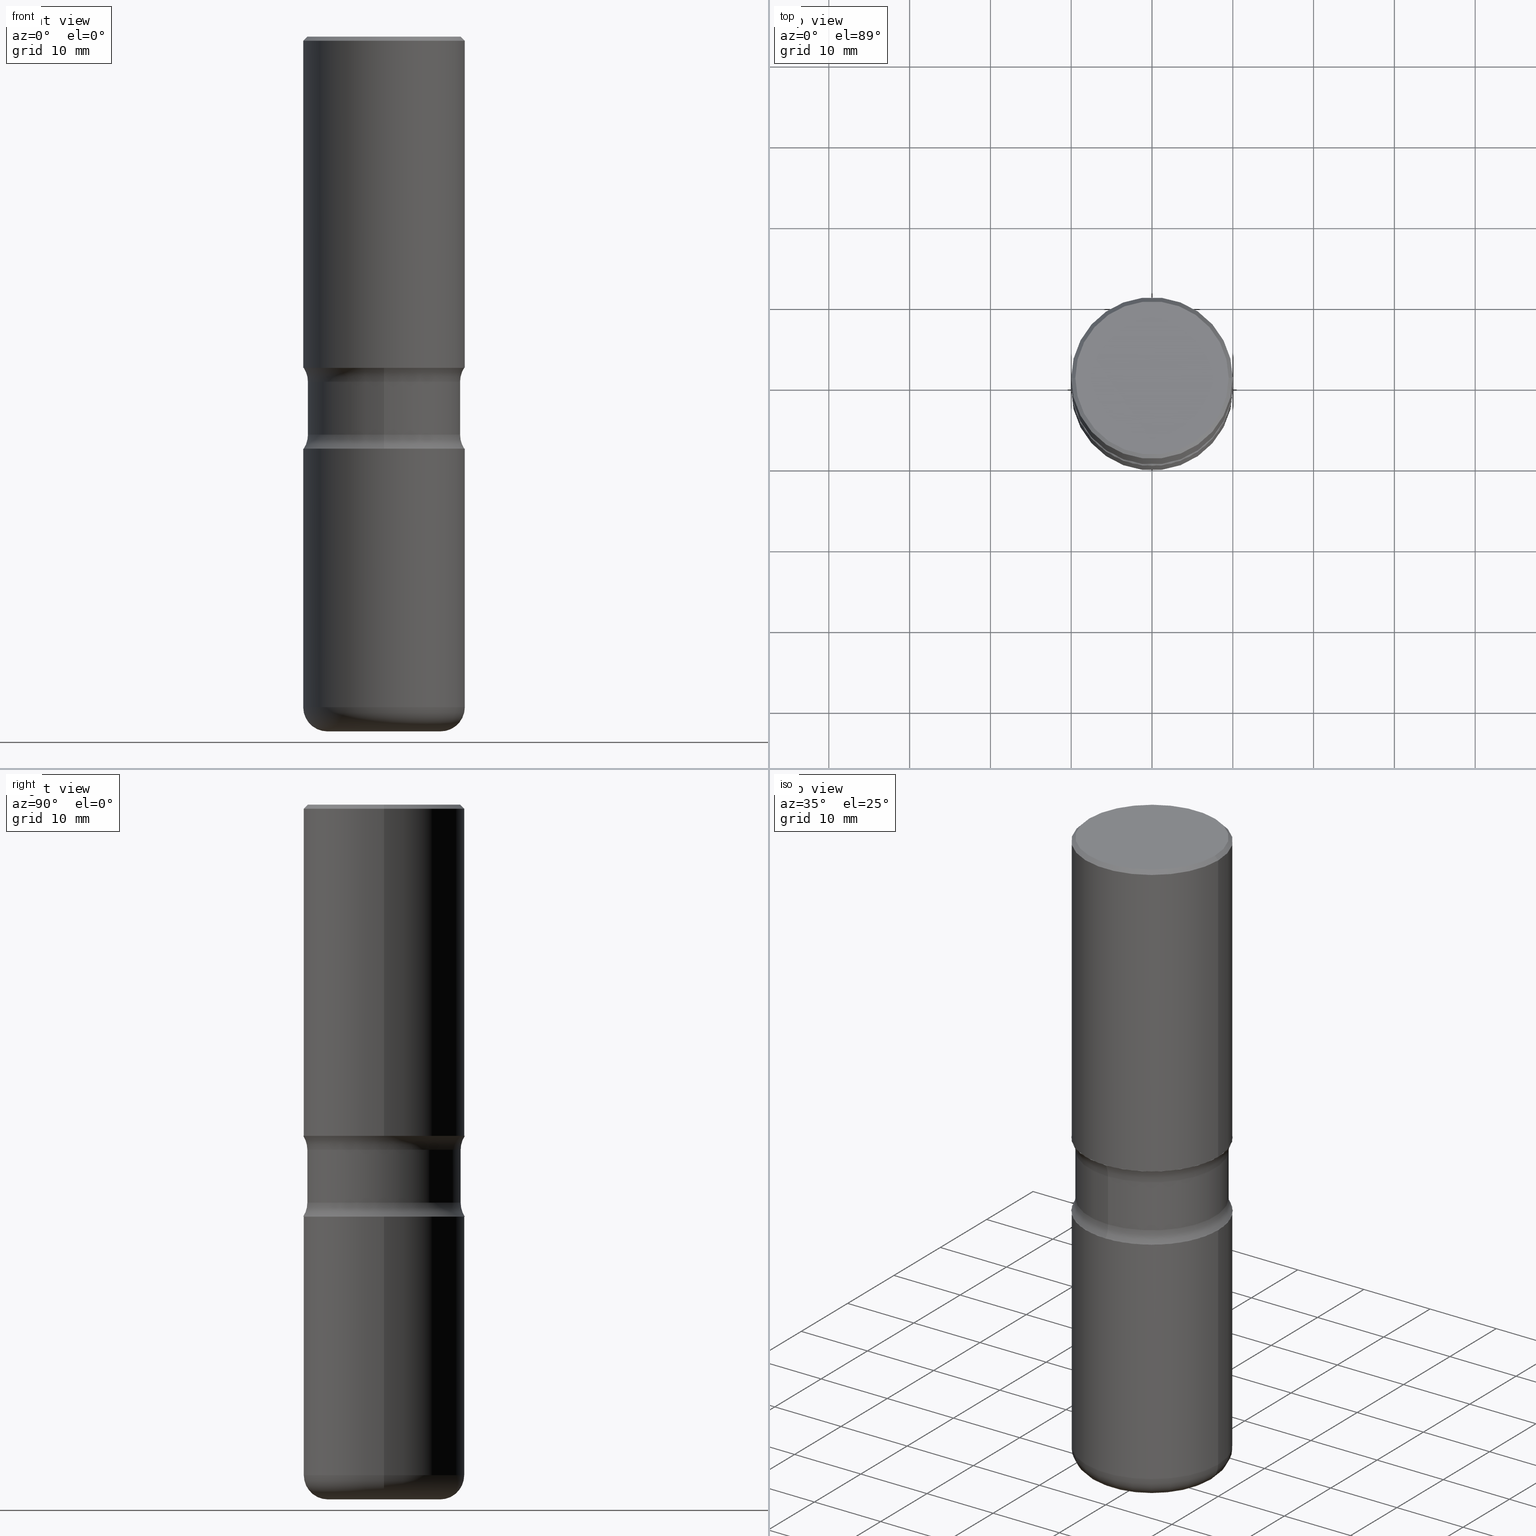
[diagram: canonical four-view strip — front | top / right | iso, engineering-drawing reading convention]
A machine part, canonical four-view strip (front | top / right | iso — engineering-drawing reading convention). The complete STEP part file that produces these views, byte-faithful:
ISO-10303-21;
HEADER;
FILE_DESCRIPTION (( 'STEP AP203' ),
    '1' );
FILE_NAME ('45006.STEP',
    '2024-03-02T04:34:52',
    ( '' ),
    ( '' ),
    'SwSTEP 2.0',
    'SolidWorks 2023',
    '' );
FILE_SCHEMA (( 'CONFIG_CONTROL_DESIGN' ));
ENDSEC;

DATA;
#1 = APPROVAL_STATUS ( 'not_yet_approved' ) ;
#2 = CARTESIAN_POINT ( 'NONE',  ( 4.752967058016124605E-29, -6.758611084008786993E-15, -1.939668069159900421 ) ) ;
#3 = AXIS2_PLACEMENT_3D ( 'NONE', #439, #234, #188 ) ;
#4 = LOCAL_TIME ( 23, 34, 52.00000000000000000, #377 ) ;
#5 = DATE_AND_TIME ( #139, #4 ) ;
#6 = CARTESIAN_POINT ( 'NONE',  ( 4.002527352294640857E-29, -5.556412791770095193E-15, -1.614100000000000090 ) ) ;
#7 = VERTEX_POINT ( 'NONE', #78 ) ;
#8 = EDGE_CURVE ( 'NONE', #489, #102, #161, .T. ) ;
#9 = COORDINATED_UNIVERSAL_TIME_OFFSET ( 5, 0, .BEHIND. ) ;
#10 = DIRECTION ( 'NONE',  ( -2.445468806185136877E-29, 3.491481338843145188E-15, 1.000000000000000000 ) ) ;
#11 = EDGE_LOOP ( 'NONE', ( #19, #438, #332, #276 ) ) ;
#12 = CARTESIAN_POINT ( 'NONE',  ( 3.131554243005659264E-46, -4.471029511141341874E-32, -1.280553747030123384E-17 ) ) ;
#13 = CONICAL_SURFACE ( 'NONE', #468, 0.3937000000000003830, 0.7853981633974467247 ) ;
#14 = AXIS2_PLACEMENT_3D ( 'NONE', #417, #413, #32 ) ;
#15 = ADVANCED_FACE ( 'NONE', ( #249 ), #58, .F. ) ;
#16 = FACE_OUTER_BOUND ( 'NONE', #11, .T. ) ;
#17 = ORIENTED_EDGE ( 'NONE', *, *, #253, .T. ) ;
#18 = DIRECTION ( 'NONE',  ( -2.445468806185136597E-29, 3.491481338843145583E-15, 1.000000000000000000 ) ) ;
#19 = ORIENTED_EDGE ( 'NONE', *, *, #85, .T. ) ;
#20 = DIRECTION ( 'NONE',  ( 6.982962677686265922E-15, 1.000000000000000000, -3.657092360996336056E-15 ) ) ;
#21 = ORIENTED_EDGE ( 'NONE', *, *, #223, .F. ) ;
#22 = CARTESIAN_POINT ( 'NONE',  ( -0.3737000000000003097, 2.644447966039791425E-15, -1.280553747031960567E-17 ) ) ;
#23 = VECTOR ( 'NONE', #10, 39.37007874015748143 ) ;
#24 = ORIENTED_EDGE ( 'NONE', *, *, #253, .F. ) ;
#25 = CIRCLE ( 'NONE', #187, 0.3937000000000007160 ) ;
#26 = EDGE_CURVE ( 'NONE', #301, #404, #297, .T. ) ;
#27 = FACE_OUTER_BOUND ( 'NONE', #452, .T. ) ;
#28 = ORIENTED_EDGE ( 'NONE', *, *, #401, .F. ) ;
#29 = CARTESIAN_POINT ( 'NONE',  ( 0.3937000000000006605, -2.749192406205087950E-15, 1.919750796630863254E-29 ) ) ;
#30 = DIRECTION ( 'NONE',  ( 2.305016298612844398E-29, -3.692617323746948219E-15, -1.000000000000000000 ) ) ;
#31 = EDGE_CURVE ( 'NONE', #160, #373, #284, .T. ) ;
#32 = DIRECTION ( 'NONE',  ( 1.000000000000000000, -6.982962677686266711E-15, 4.876212485538971195E-29 ) ) ;
#33 = AXIS2_PLACEMENT_3D ( 'NONE', #430, #350, #263 ) ;
#34 = AXIS2_PLACEMENT_3D ( 'NONE', #539, #487, #156 ) ;
#35 = LINE ( 'NONE', #111, #80 ) ;
#36 = DIRECTION ( 'NONE',  ( 2.445468806185136597E-29, -3.491481338843145583E-15, -1.000000000000000000 ) ) ;
#37 = CYLINDRICAL_SURFACE ( 'NONE', #344, 0.3735000000000001097 ) ;
#38 = CARTESIAN_POINT ( 'NONE',  ( 8.279868283981636714E-29, -1.182145751705512373E-14, -3.385800000000000143 ) ) ;
#39 = DIRECTION ( 'NONE',  ( 6.982962677686264344E-15, 1.000000000000000000, -3.657092360996334478E-15 ) ) ;
#40 = DIRECTION ( 'NONE',  ( -2.445468806185136877E-29, 3.491481338843145188E-15, 1.000000000000000000 ) ) ;
#41 = AXIS2_PLACEMENT_3D ( 'NONE', #140, #97, #267 ) ;
#42 = CIRCLE ( 'NONE', #196, 0.3735000000000000542 ) ;
#43 = CALENDAR_DATE ( 2024, 1, 3 ) ;
#44 = CARTESIAN_POINT ( 'NONE',  ( -0.3937000000000004940, 2.797406750687517942E-15, -1.936584745033358697E-29 ) ) ;
#45 = PERSON_AND_ORGANIZATION ( #55, #415 ) ;
#46 = CARTESIAN_POINT ( 'NONE',  ( 0.3937000000000006605, -8.384792435231810596E-15, -1.614100000000000090 ) ) ;
#47 = CARTESIAN_POINT ( 'NONE',  ( 2.609533152651359776E-15, 0.3737000000000003097, -1.311169345060835261E-15 ) ) ;
#48 = AXIS2_PLACEMENT_3D ( 'NONE', #54, #524, #427 ) ;
#49 = TOROIDAL_SURFACE ( 'NONE', #114, 0.4985000000000001652, 0.1250000000000000278 ) ;
#50 = DATE_AND_TIME ( #136, #538 ) ;
#51 = CARTESIAN_POINT ( 'NONE',  ( 0.3937000000000006605, -1.415830597714283597E-14, -3.267700000000000937 ) ) ;
#52 = CC_DESIGN_PERSON_AND_ORGANIZATION_ASSIGNMENT ( #254, #339, ( #437 ) ) ;
#53 = MECHANICAL_CONTEXT ( 'NONE', #75, 'mechanical' ) ;
#54 = CARTESIAN_POINT ( 'NONE',  ( 3.481006894826646538E-15, 0.4984999999999943365, -1.682231930840101475 ) ) ;
#55 = PERSON ( 'UNSPECIFIED', 'UNSPECIFIED', 'UNSPECIFIED', ('UNSPECIFIED'), ('UNSPECIFIED'), ('UNSPECIFIED') ) ;
#56 = CARTESIAN_POINT ( 'NONE',  ( 0.000000000000000000, 0.000000000000000000, 0.000000000000000000 ) ) ;
#57 = ORIENTED_EDGE ( 'NONE', *, *, #328, .F. ) ;
#58 = TOROIDAL_SURFACE ( 'NONE', #257, 0.4985000000000002207, 0.1250000000000000000 ) ;
#59 = ADVANCED_FACE ( 'NONE', ( #252 ), #13, .T. ) ;
#60 = VECTOR ( 'NONE', #30, 39.37007874015748143 ) ;
#61 = CYLINDRICAL_SURFACE ( 'NONE', #228, 0.3937000000000004940 ) ;
#62 = ORIENTED_EDGE ( 'NONE', *, *, #309, .F. ) ;
#63 = DIRECTION ( 'NONE',  ( 0.7071067811865464625, -7.319954787623252890E-15, -0.7071067811865486830 ) ) ;
#64 = ORIENTED_EDGE ( 'NONE', *, *, #106, .T. ) ;
#65 = DIRECTION ( 'NONE',  ( 7.105427357601001859E-15, 1.000000000000000000, -3.491481338843145583E-15 ) ) ;
#66 = ORIENTED_EDGE ( 'NONE', *, *, #144, .F. ) ;
#67 = ADVANCED_FACE ( 'NONE', ( #251 ), #292, .T. ) ;
#68 = LINE ( 'NONE', #393, #354 ) ;
#69 = TOROIDAL_SURFACE ( 'NONE', #405, 0.4985000000000002207, 0.1250000000000000000 ) ;
#70 = VERTEX_POINT ( 'NONE', #457 ) ;
#71 = CC_DESIGN_SECURITY_CLASSIFICATION ( #247, ( #437 ) ) ;
#72 = LINE ( 'NONE', #29, #376 ) ;
#73 = APPLICATION_CONTEXT ( 'configuration controlled 3d designs of mechanical parts and assemblies' ) ;
#74 = DIRECTION ( 'NONE',  ( 2.305016298612844398E-29, -3.692617323746948219E-15, -1.000000000000000000 ) ) ;
#75 = APPLICATION_CONTEXT ( 'configuration controlled 3d designs of mechanical parts and assemblies' ) ;
#76 = APPROVAL ( #1, 'UNSPECIFIED' ) ;
#77 = DIRECTION ( 'NONE',  ( 2.305016298612844398E-29, -3.692617323746948219E-15, -1.000000000000000000 ) ) ;
#78 = CARTESIAN_POINT ( 'NONE',  ( -0.3937000000000006605, -8.611706820250229288E-15, -3.267700000000000937 ) ) ;
#79 = AXIS2_PLACEMENT_3D ( 'NONE', #130, #87, #305 ) ;
#80 = VECTOR ( 'NONE', #412, 39.37007874015748143 ) ;
#81 = FACE_OUTER_BOUND ( 'NONE', #390, .T. ) ;
#82 = DIRECTION ( 'NONE',  ( 1.000000000000000000, -6.982962677686266711E-15, 4.876176775795935793E-29 ) ) ;
#83 =( NAMED_UNIT ( * ) PLANE_ANGLE_UNIT ( ) SI_UNIT ( $, .RADIAN. ) );
#84 = EDGE_LOOP ( 'NONE', ( #322, #154, #244, #459 ) ) ;
#85 = EDGE_CURVE ( 'NONE', #311, #160, #123, .T. ) ;
#86 = APPROVAL_DATE_TIME ( #173, #76 ) ;
#87 = DIRECTION ( 'NONE',  ( 2.305016298612844398E-29, -3.692617323746948219E-15, -1.000000000000000000 ) ) ;
#88 = EDGE_CURVE ( 'NONE', #108, #226, #411, .T. ) ;
#89 = AXIS2_PLACEMENT_3D ( 'NONE', #109, #279, #408 ) ;
#90 = SECURITY_CLASSIFICATION_LEVEL ( 'unclassified' ) ;
#91 = DIRECTION ( 'NONE',  ( 1.000000000000000000, -6.982962677686266711E-15, 4.876176775795936353E-29 ) ) ;
#92 = APPLICATION_PROTOCOL_DEFINITION ( 'international standard', 'config_control_design', 1994, #73 ) ;
#93 = ADVANCED_FACE ( 'NONE', ( #337 ), #212, .F. ) ;
#94 = DIRECTION ( 'NONE',  ( 1.000000000000000000, -6.982962677686266711E-15, 0.000000000000000000 ) ) ;
#95 = DIRECTION ( 'NONE',  ( 2.305016298612844398E-29, -3.692617323746948219E-15, -1.000000000000000000 ) ) ;
#96 =( GEOMETRIC_REPRESENTATION_CONTEXT ( 3 ) GLOBAL_UNCERTAINTY_ASSIGNED_CONTEXT ( ( #120 ) ) GLOBAL_UNIT_ASSIGNED_CONTEXT ( ( #125, #83, #520 ) ) REPRESENTATION_CONTEXT ( 'NONE', 'WORKASPACE' ) );
#97 = DIRECTION ( 'NONE',  ( -2.445468806185136597E-29, 3.491481338843145583E-15, 1.000000000000000000 ) ) ;
#98 = ORIENTED_EDGE ( 'NONE', *, *, #345, .T. ) ;
#99 = EDGE_CURVE ( 'NONE', #206, #70, #72, .T. ) ;
#100 = CARTESIAN_POINT ( 'NONE',  ( 4.159572563337033897E-29, -5.807997939890574032E-15, -1.682231930840099476 ) ) ;
#101 = CARTESIAN_POINT ( 'NONE',  ( 0.000000000000000000, 0.000000000000000000, 0.000000000000000000 ) ) ;
#102 = VERTEX_POINT ( 'NONE', #521 ) ;
#103 = AXIS2_PLACEMENT_3D ( 'NONE', #6, #182, #347 ) ;
#104 = CARTESIAN_POINT ( 'NONE',  ( 3.947231200063429727E-29, -5.635600029026721857E-15, -1.614100000000000090 ) ) ;
#105 = VERTEX_POINT ( 'NONE', #224 ) ;
#106 = EDGE_CURVE ( 'NONE', #404, #301, #272, .T. ) ;
#107 = DIRECTION ( 'NONE',  ( 6.982962677686265922E-15, 1.000000000000000000, -3.469453890861389657E-15 ) ) ;
#108 = VERTEX_POINT ( 'NONE', #46 ) ;
#109 = CARTESIAN_POINT ( 'NONE',  ( 4.910012269058516525E-29, -7.010196232129267410E-15, -2.007800000000000029 ) ) ;
#110 = ORIENTED_EDGE ( 'NONE', *, *, #135, .T. ) ;
#111 = CARTESIAN_POINT ( 'NONE',  ( -0.3937000000000003830, 2.679362779428222679E-15, -0.02000000000000013572 ) ) ;
#112 = CIRCLE ( 'NONE', #462, 0.2756000000000001227 ) ;
#113 = ORIENTED_EDGE ( 'NONE', *, *, #274, .T. ) ;
#114 = AXIS2_PLACEMENT_3D ( 'NONE', #166, #74, #499 ) ;
#115 = DIMENSIONAL_EXPONENTS ( 1.000000000000000000, 0.000000000000000000, 0.000000000000000000, 0.000000000000000000, 0.000000000000000000, 0.000000000000000000, 0.000000000000000000 ) ;
#116 = DIRECTION ( 'NONE',  ( 2.305016298612844398E-29, -3.692617323746948219E-15, -1.000000000000000000 ) ) ;
#117 = CARTESIAN_POINT ( 'NONE',  ( 4.743397757483890668E-29, -6.772314867021708215E-15, -1.939668069159900421 ) ) ;
#118 = DIRECTION ( 'NONE',  ( 6.982962677686265922E-15, 1.000000000000000000, -4.388510833195602005E-15 ) ) ;
#119 = VERTEX_POINT ( 'NONE', #174 ) ;
#120 = UNCERTAINTY_MEASURE_WITH_UNIT (LENGTH_MEASURE( 1.000000000000000082E-05 ), #125, 'distance_accuracy_value', 'NONE');
#121 = CARTESIAN_POINT ( 'NONE',  ( 7.991058417971171713E-29, -1.140911357093774644E-14, -3.267700000000000049 ) ) ;
#122 = ORIENTED_EDGE ( 'NONE', *, *, #229, .T. ) ;
#123 = CIRCLE ( 'NONE', #478, 0.3735000000000000542 ) ;
#124 = CIRCLE ( 'NONE', #299, 0.3735000000000002207 ) ;
#125 =( CONVERSION_BASED_UNIT ( 'INCH', #209 ) LENGTH_UNIT ( ) NAMED_UNIT ( #115 ) );
#126 = DIRECTION ( 'NONE',  ( -1.000000000000000000, 6.982962677686266711E-15, 0.000000000000000000 ) ) ;
#127 = CALENDAR_DATE ( 2024, 1, 3 ) ;
#128 = DIRECTION ( 'NONE',  ( 1.000000000000000000, -6.982962677686265922E-15, 4.876176775795935793E-29 ) ) ;
#129 = DATE_TIME_ROLE ( 'creation_date' ) ;
#130 = CARTESIAN_POINT ( 'NONE',  ( 4.161536693090229815E-29, -5.805185194292673437E-15, -1.682231930840099476 ) ) ;
#131 = AXIS2_PLACEMENT_3D ( 'NONE', #310, #18, #190 ) ;
#132 = ADVANCED_FACE ( 'NONE', ( #137 ), #394, .F. ) ;
#133 = DIRECTION ( 'NONE',  ( 1.000000000000000000, 0.000000000000000000, 0.000000000000000000 ) ) ;
#134 = CYLINDRICAL_SURFACE ( 'NONE', #245, 0.3937000000000006605 ) ;
#135 = EDGE_CURVE ( 'NONE', #160, #533, #342, .T. ) ;
#136 = CALENDAR_DATE ( 2024, 1, 3 ) ;
#137 = FACE_OUTER_BOUND ( 'NONE', #207, .T. ) ;
#138 = ORIENTED_EDGE ( 'NONE', *, *, #106, .F. ) ;
#139 = CALENDAR_DATE ( 2024, 1, 3 ) ;
#140 = CARTESIAN_POINT ( 'NONE',  ( 4.890937612370306439E-31, -6.982962677686338448E-17, -0.02000000000000013572 ) ) ;
#141 = VECTOR ( 'NONE', #434, 39.37007874015748143 ) ;
#142 = CIRCLE ( 'NONE', #89, 0.3937000000000007160 ) ;
#143 = DIRECTION ( 'NONE',  ( -2.305016298612844117E-29, 3.692617323746948219E-15, 1.000000000000000000 ) ) ;
#144 = EDGE_CURVE ( 'NONE', #119, #226, #536, .T. ) ;
#145 = VERTEX_POINT ( 'NONE', #479 ) ;
#146 = DIRECTION ( 'NONE',  ( 6.982962677686265922E-15, 1.000000000000000000, -3.692617323746948219E-15 ) ) ;
#147 = ORIENTED_EDGE ( 'NONE', *, *, #144, .T. ) ;
#148 = DIRECTION ( 'NONE',  ( 1.000000000000000000, -6.860497997771530774E-15, 4.838335674223085535E-29 ) ) ;
#149 = ORIENTED_EDGE ( 'NONE', *, *, #248, .T. ) ;
#150 = ADVANCED_FACE ( 'NONE', ( #259 ), #177, .F. ) ;
#151 = AXIS2_PLACEMENT_3D ( 'NONE', #491, #483, #397 ) ;
#152 = CIRCLE ( 'NONE', #446, 0.3937000000000006605 ) ;
#153 = DIRECTION ( 'NONE',  ( 1.000000000000000000, -6.982962677686266711E-15, 4.876176775795936353E-29 ) ) ;
#154 = ORIENTED_EDGE ( 'NONE', *, *, #215, .T. ) ;
#155 = ADVANCED_FACE ( 'NONE', ( #526 ), #185, .F. ) ;
#156 = DIRECTION ( 'NONE',  ( 1.000000000000000000, -6.982962677686266711E-15, 0.000000000000000000 ) ) ;
#157 = EDGE_LOOP ( 'NONE', ( #28, #110, #149, #21 ) ) ;
#158 = CARTESIAN_POINT ( 'NONE',  ( 8.086324728547017721E-29, -1.209862290425256339E-14, -3.385800000000000143 ) ) ;
#159 = EDGE_CURVE ( 'NONE', #105, #119, #467, .T. ) ;
#160 = VERTEX_POINT ( 'NONE', #351 ) ;
#161 = CIRCLE ( 'NONE', #195, 0.2756000000000001227 ) ;
#162 = DIRECTION ( 'NONE',  ( 6.982962677686265922E-15, 1.000000000000000000, -4.388510833195602005E-15 ) ) ;
#163 = CIRCLE ( 'NONE', #205, 0.1180999999999999273 ) ;
#164 = CARTESIAN_POINT ( 'NONE',  ( 0.3937000000000004940, -2.749192406205086766E-15, 1.919750796630862414E-29 ) ) ;
#165 = CC_DESIGN_PERSON_AND_ORGANIZATION_ASSIGNMENT ( #260, #262, ( #431 ) ) ;
#166 = CARTESIAN_POINT ( 'NONE',  ( 4.161536693090229815E-29, -5.805185194292673437E-15, -1.682231930840099476 ) ) ;
#167 = EDGE_LOOP ( 'NONE', ( #473, #168, #356, #231 ) ) ;
#168 = ORIENTED_EDGE ( 'NONE', *, *, #401, .T. ) ;
#169 = CARTESIAN_POINT ( 'NONE',  ( 2.608136560115902248E-15, 0.3734999999999880638, -3.385800000000001919 ) ) ;
#170 = ORIENTED_EDGE ( 'NONE', *, *, #391, .T. ) ;
#171 = CC_DESIGN_APPROVAL ( #380, ( #247 ) ) ;
#172 = CARTESIAN_POINT ( 'NONE',  ( 4.159572563337033897E-29, -5.807997939890574032E-15, -1.682231930840099476 ) ) ;
#173 = DATE_AND_TIME ( #127, #369 ) ;
#174 = CARTESIAN_POINT ( 'NONE',  ( -0.3937000000000003830, 2.679362779428222679E-15, -0.02000000000000013572 ) ) ;
#175 = EDGE_CURVE ( 'NONE', #373, #364, #227, .T. ) ;
#176 = PERSON_AND_ORGANIZATION ( #55, #415 ) ;
#177 = PLANE ( 'NONE',  #506 ) ;
#178 = AXIS2_PLACEMENT_3D ( 'NONE', #304, #218, #94 ) ;
#179 = ADVANCED_FACE ( 'NONE', ( #471 ), #256, .T. ) ;
#180 = AXIS2_PLACEMENT_3D ( 'NONE', #542, #501, #374 ) ;
#181 = APPROVAL_ROLE ( '' ) ;
#182 = DIRECTION ( 'NONE',  ( 2.305016298612844398E-29, -3.692617323746948219E-15, -1.000000000000000000 ) ) ;
#183 = DATE_AND_TIME ( #43, #407 ) ;
#184 = LINE ( 'NONE', #381, #23 ) ;
#185 = PLANE ( 'NONE',  #353 ) ;
#186 = ORIENTED_EDGE ( 'NONE', *, *, #486, .T. ) ;
#187 = AXIS2_PLACEMENT_3D ( 'NONE', #551, #333, #544 ) ;
#188 = DIRECTION ( 'NONE',  ( 6.982962677686265133E-15, 1.000000000000000000, -3.469453890861390051E-15 ) ) ;
#189 = ORIENTED_EDGE ( 'NONE', *, *, #208, .F. ) ;
#190 = DIRECTION ( 'NONE',  ( 1.000000000000000000, -6.982962677686266711E-15, 0.000000000000000000 ) ) ;
#191 = ORIENTED_EDGE ( 'NONE', *, *, #293, .T. ) ;
#192 = ADVANCED_FACE ( 'NONE', ( #519 ), #134, .T. ) ;
#193 = DIRECTION ( 'NONE',  ( 1.000000000000000000, -6.982962677686262766E-15, 0.000000000000000000 ) ) ;
#194 = ORIENTED_EDGE ( 'NONE', *, *, #336, .T. ) ;
#195 = AXIS2_PLACEMENT_3D ( 'NONE', #38, #545, #368 ) ;
#196 = AXIS2_PLACEMENT_3D ( 'NONE', #100, #268, #20 ) ;
#197 = ORIENTED_EDGE ( 'NONE', *, *, #88, .T. ) ;
#198 = EDGE_CURVE ( 'NONE', #440, #533, #386, .T. ) ;
#199 = DIRECTION ( 'NONE',  ( -2.445468806185136597E-29, 3.491481338843145583E-15, 1.000000000000000000 ) ) ;
#200 = ORIENTED_EDGE ( 'NONE', *, *, #429, .F. ) ;
#201 = CARTESIAN_POINT ( 'NONE',  ( 0.2756000000000007888, -1.333361808490808771E-14, -3.267700000000000049 ) ) ;
#202 = DIRECTION ( 'NONE',  ( -2.445468806185136877E-29, 3.491481338843145188E-15, 1.000000000000000000 ) ) ;
#203 = CLOSED_SHELL ( 'NONE', ( #67, #59, #531, #155, #93, #303 ) ) ;
#204 = DIRECTION ( 'NONE',  ( 6.982962677686265922E-15, 1.000000000000000000, -3.692617323746948219E-15 ) ) ;
#205 = AXIS2_PLACEMENT_3D ( 'NONE', #450, #65, #308 ) ;
#206 = VERTEX_POINT ( 'NONE', #51 ) ;
#207 = EDGE_LOOP ( 'NONE', ( #528, #317, #278, #476 ) ) ;
#208 = EDGE_CURVE ( 'NONE', #7, #206, #414, .T. ) ;
#209 = LENGTH_MEASURE_WITH_UNIT ( LENGTH_MEASURE( 0.02539999999999999897 ), #460 );
#210 = DIRECTION ( 'NONE',  ( 2.305016298612844398E-29, -3.692617323746948219E-15, -1.000000000000000000 ) ) ;
#211 = FACE_OUTER_BOUND ( 'NONE', #540, .T. ) ;
#212 = PLANE ( 'NONE',  #423 ) ;
#213 = CLOSED_SHELL ( 'NONE', ( #410, #15, #541, #132, #503, #318, #264, #557 ) ) ;
#214 = APPROVAL_PERSON_ORGANIZATION ( #432, #515, #382 ) ;
#215 = EDGE_CURVE ( 'NONE', #7, #145, #184, .T. ) ;
#216 = DIRECTION ( 'NONE',  ( 2.438088387897960049E-29, -3.491481338843145188E-15, -1.000000000000000000 ) ) ;
#217 = CC_DESIGN_PERSON_AND_ORGANIZATION_ASSIGNMENT ( #466, #518, ( #247 ) ) ;
#218 = DIRECTION ( 'NONE',  ( -2.445468806185136597E-29, 3.491481338843145583E-15, 1.000000000000000000 ) ) ;
#219 = VECTOR ( 'NONE', #549, 39.37007874015748143 ) ;
#220 = CIRCLE ( 'NONE', #362, 0.3937000000000007160 ) ;
#221 = DIRECTION ( 'NONE',  ( 0.000000000000000000, 0.000000000000000000, 1.000000000000000000 ) ) ;
#222 = DIRECTION ( 'NONE',  ( -2.445468806185136597E-29, 3.491481338843145583E-15, 1.000000000000000000 ) ) ;
#223 = EDGE_CURVE ( 'NONE', #311, #440, #525, .T. ) ;
#224 = CARTESIAN_POINT ( 'NONE',  ( -0.3937000000000007160, -5.530807721427186863E-17, -1.614100000000000090 ) ) ;
#225 = DIRECTION ( 'NONE',  ( -2.445468806185136597E-29, 3.491481338843145583E-15, 1.000000000000000000 ) ) ;
#226 = VERTEX_POINT ( 'NONE', #560 ) ;
#227 = CIRCLE ( 'NONE', #444, 0.3735000000000002207 ) ;
#228 = AXIS2_PLACEMENT_3D ( 'NONE', #56, #230, #277 ) ;
#229 = EDGE_CURVE ( 'NONE', #226, #119, #281, .T. ) ;
#230 = DIRECTION ( 'NONE',  ( -2.445468806185136597E-29, 3.491481338843145583E-15, 1.000000000000000000 ) ) ;
#231 = ORIENTED_EDGE ( 'NONE', *, *, #175, .F. ) ;
#232 = CARTESIAN_POINT ( 'NONE',  ( 8.279868283981636714E-29, -1.182145751705512373E-14, -3.385800000000000143 ) ) ;
#233 = ORIENTED_EDGE ( 'NONE', *, *, #328, .T. ) ;
#234 = DIRECTION ( 'NONE',  ( 2.305016298612844398E-29, -3.692617323746948219E-15, -1.000000000000000000 ) ) ;
#235 = ORIENTED_EDGE ( 'NONE', *, *, #215, .F. ) ;
#236 = CIRCLE ( 'NONE', #324, 0.3937000000000007160 ) ;
#237 = TOROIDAL_SURFACE ( 'NONE', #378, 0.2756000000000007888, 0.1180999999999999411 ) ;
#238 = MANIFOLD_SOLID_BREP ( 'Body-Move/Copy2[4]', #213 ) ;
#239 = DIRECTION ( 'NONE',  ( 2.305016298612844398E-29, -3.692617323746948219E-15, -1.000000000000000000 ) ) ;
#240 = ORIENTED_EDGE ( 'NONE', *, *, #229, .F. ) ;
#241 = DIRECTION ( 'NONE',  ( 1.000000000000000000, -6.982962677686265922E-15, 4.883557194083112340E-29 ) ) ;
#242 = DIRECTION ( 'NONE',  ( 2.305016298612844398E-29, -3.692617323746948219E-15, -1.000000000000000000 ) ) ;
#243 = DIRECTION ( 'NONE',  ( -2.445468806185136597E-29, 3.491481338843145583E-15, 1.000000000000000000 ) ) ;
#244 = ORIENTED_EDGE ( 'NONE', *, *, #384, .F. ) ;
#245 = AXIS2_PLACEMENT_3D ( 'NONE', #387, #436, #91 ) ;
#246 = CARTESIAN_POINT ( 'NONE',  ( -2.700978061722615754E-15, -0.3937000000000061006, -1.614099999999998536 ) ) ;
#247 = SECURITY_CLASSIFICATION ( '', '', #90 ) ;
#248 = EDGE_CURVE ( 'NONE', #533, #440, #307, .T. ) ;
#249 = FACE_OUTER_BOUND ( 'NONE', #530, .T. ) ;
#250 = PLANE ( 'NONE',  #289 ) ;
#251 = FACE_OUTER_BOUND ( 'NONE', #306, .T. ) ;
#252 = FACE_OUTER_BOUND ( 'NONE', #398, .T. ) ;
#253 = EDGE_CURVE ( 'NONE', #537, #364, #435, .T. ) ;
#254 = PERSON_AND_ORGANIZATION ( #55, #415 ) ;
#255 = AXIS2_PLACEMENT_3D ( 'NONE', #12, #300, #514 ) ;
#256 = PLANE ( 'NONE',  #33 ) ;
#257 = AXIS2_PLACEMENT_3D ( 'NONE', #117, #242, #419 ) ;
#258 = PERSON_AND_ORGANIZATION_ROLE ( 'creator' ) ;
#259 = FACE_OUTER_BOUND ( 'NONE', #271, .T. ) ;
#260 = PERSON_AND_ORGANIZATION ( #55, #415 ) ;
#261 = CARTESIAN_POINT ( 'NONE',  ( 6.855736476519530636E-29, -4.223808423300667969E-15, -2.007800000000000029 ) ) ;
#262 = PERSON_AND_ORGANIZATION_ROLE ( 'design_owner' ) ;
#263 = DIRECTION ( 'NONE',  ( -1.000000000000000000, 6.982962677686265922E-15, -4.876176775795935793E-29 ) ) ;
#264 = ADVANCED_FACE ( 'NONE', ( #532 ), #69, .F. ) ;
#265 = ORIENTED_EDGE ( 'NONE', *, *, #274, .F. ) ;
#266 = AXIS2_PLACEMENT_3D ( 'NONE', #295, #222, #389 ) ;
#267 = DIRECTION ( 'NONE',  ( 1.000000000000000000, -6.982962677686266711E-15, 0.000000000000000000 ) ) ;
#268 = DIRECTION ( 'NONE',  ( 2.305016298612844398E-29, -3.692617323746948219E-15, -1.000000000000000000 ) ) ;
#269 = EDGE_CURVE ( 'NONE', #102, #489, #112, .T. ) ;
#270 = CARTESIAN_POINT ( 'NONE',  ( 4.910012269058516525E-29, -7.010196232129267410E-15, -2.007800000000000029 ) ) ;
#271 = EDGE_LOOP ( 'NONE', ( #409, #554 ) ) ;
#272 = CIRCLE ( 'NONE', #255, 0.3737000000000003097 ) ;
#273 = TOROIDAL_SURFACE ( 'NONE', #455, 0.2756000000000007888, 0.1180999999999999411 ) ;
#274 = EDGE_CURVE ( 'NONE', #558, #373, #287, .T. ) ;
#275 = DIRECTION ( 'NONE',  ( -2.445468806185136597E-29, 3.491481338843145583E-15, 1.000000000000000000 ) ) ;
#276 = ORIENTED_EDGE ( 'NONE', *, *, #494, .F. ) ;
#277 = DIRECTION ( 'NONE',  ( 1.000000000000000000, -6.982962677686266711E-15, 4.876176775795935793E-29 ) ) ;
#278 = ORIENTED_EDGE ( 'NONE', *, *, #223, .T. ) ;
#279 = DIRECTION ( 'NONE',  ( -2.445468806185136597E-29, 3.491481338843145583E-15, 1.000000000000000000 ) ) ;
#280 = ORIENTED_EDGE ( 'NONE', *, *, #293, .F. ) ;
#281 = CIRCLE ( 'NONE', #41, 0.3937000000000003830 ) ;
#282 = CARTESIAN_POINT ( 'NONE',  ( -2.700978061722607076E-15, -0.3937000000000076549, -2.007799999999998253 ) ) ;
#283 = ORIENTED_EDGE ( 'NONE', *, *, #447, .T. ) ;
#284 = LINE ( 'NONE', #290, #219 ) ;
#285 = ADVANCED_FACE ( 'NONE', ( #27 ), #313, .T. ) ;
#286 = ORIENTED_EDGE ( 'NONE', *, *, #336, .F. ) ;
#287 = CIRCLE ( 'NONE', #361, 0.1250000000000000278 ) ;
#288 = CARTESIAN_POINT ( 'NONE',  ( -0.2756000000000001227, -9.237454278775256635E-15, -3.385800000000000143 ) ) ;
#289 = AXIS2_PLACEMENT_3D ( 'NONE', #420, #367, #204 ) ;
#290 = CARTESIAN_POINT ( 'NONE',  ( -2.562396002167586553E-15, -0.3735000000000122111, -3.385799999999998811 ) ) ;
#291 = CARTESIAN_POINT ( 'NONE',  ( 4.752967058016124605E-29, -6.758611084008786993E-15, -1.939668069159900421 ) ) ;
#292 = CYLINDRICAL_SURFACE ( 'NONE', #323, 0.3937000000000004940 ) ;
#293 = EDGE_CURVE ( 'NONE', #537, #558, #236, .T. ) ;
#294 = APPROVAL_DATE_TIME ( #50, #515 ) ;
#295 = CARTESIAN_POINT ( 'NONE',  ( 7.991058417971172834E-29, -1.140911357093774960E-14, -3.267700000000000937 ) ) ;
#296 = APPROVAL_STATUS ( 'not_yet_approved' ) ;
#297 = CIRCLE ( 'NONE', #14, 0.3737000000000003097 ) ;
#298 = DIRECTION ( 'NONE',  ( 1.000000000000000000, -6.860497997771530774E-15, 4.838335674223085535E-29 ) ) ;
#299 = AXIS2_PLACEMENT_3D ( 'NONE', #291, #77, #39 ) ;
#300 = DIRECTION ( 'NONE',  ( -2.445468806185136597E-29, 3.491481338843145583E-15, 1.000000000000000000 ) ) ;
#301 = VERTEX_POINT ( 'NONE', #22 ) ;
#302 = PERSON_AND_ORGANIZATION_ROLE ( 'creator' ) ;
#303 = ADVANCED_FACE ( 'NONE', ( #365 ), #61, .T. ) ;
#304 = CARTESIAN_POINT ( 'NONE',  ( 4.890937612370306439E-31, -6.982962677686338448E-17, -0.02000000000000013572 ) ) ;
#305 = DIRECTION ( 'NONE',  ( 6.982962677686265922E-15, 1.000000000000000000, -3.692617323746948219E-15 ) ) ;
#306 = EDGE_LOOP ( 'NONE', ( #233, #482, #240, #461 ) ) ;
#307 = CIRCLE ( 'NONE', #3, 0.3937000000000006605 ) ;
#308 = DIRECTION ( 'NONE',  ( -1.000000000000000000, 7.105427357601000281E-15, 0.000000000000000000 ) ) ;
#309 = EDGE_CURVE ( 'NONE', #206, #7, #388, .T. ) ;
#310 = CARTESIAN_POINT ( 'NONE',  ( 7.991058417971172834E-29, -1.140911357093774960E-14, -3.267700000000000937 ) ) ;
#311 = VERTEX_POINT ( 'NONE', #484 ) ;
#312 = CC_DESIGN_DATE_AND_TIME_ASSIGNMENT ( #477, #129, ( #451 ) ) ;
#313 = CYLINDRICAL_SURFACE ( 'NONE', #555, 0.3937000000000006605 ) ;
#314 = ORIENTED_EDGE ( 'NONE', *, *, #391, .F. ) ;
#315 = CC_DESIGN_APPROVAL ( #76, ( #437 ) ) ;
#316 = DIRECTION ( 'NONE',  ( 2.305016298612844398E-29, -3.692617323746948219E-15, -1.000000000000000000 ) ) ;
#317 = ORIENTED_EDGE ( 'NONE', *, *, #85, .F. ) ;
#318 = ADVANCED_FACE ( 'NONE', ( #403 ), #453, .F. ) ;
#319 = CARTESIAN_POINT ( 'NONE',  ( 2.608136560115869116E-15, 0.3734999999999934484, -1.939668069159901753 ) ) ;
#320 = EDGE_LOOP ( 'NONE', ( #57, #286 ) ) ;
#321 = DIRECTION ( 'NONE',  ( -6.982962677686266711E-15, -1.000000000000000000, 3.491481338843145583E-15 ) ) ;
#322 = ORIENTED_EDGE ( 'NONE', *, *, #309, .T. ) ;
#323 = AXIS2_PLACEMENT_3D ( 'NONE', #502, #464, #82 ) ;
#324 = AXIS2_PLACEMENT_3D ( 'NONE', #270, #363, #107 ) ;
#325 = AXIS2_PLACEMENT_3D ( 'NONE', #201, #321, #504 ) ;
#326 = DIRECTION ( 'NONE',  ( -2.445468806185136597E-29, 3.491481338843145583E-15, 1.000000000000000000 ) ) ;
#327 = ORIENTED_EDGE ( 'NONE', *, *, #159, .F. ) ;
#328 = EDGE_CURVE ( 'NONE', #108, #105, #547, .T. ) ;
#329 = DIRECTION ( 'NONE',  ( 2.305016298612844398E-29, -3.692617323746948219E-15, -1.000000000000000000 ) ) ;
#330 = CARTESIAN_POINT ( 'NONE',  ( 4.890937612370306439E-31, -6.982962677686338448E-17, -0.02000000000000013572 ) ) ;
#331 = CARTESIAN_POINT ( 'NONE',  ( 2.749192406205137254E-15, 0.3936999999999936661, -2.007800000000001361 ) ) ;
#332 = ORIENTED_EDGE ( 'NONE', *, *, #486, .F. ) ;
#333 = DIRECTION ( 'NONE',  ( -2.445468806185136597E-29, 3.491481338843145583E-15, 1.000000000000000000 ) ) ;
#334 = ORIENTED_EDGE ( 'NONE', *, *, #8, .T. ) ;
#335 = APPROVAL_STATUS ( 'not_yet_approved' ) ;
#336 = EDGE_CURVE ( 'NONE', #105, #108, #152, .T. ) ;
#337 = FACE_OUTER_BOUND ( 'NONE', #320, .T. ) ;
#338 = PRODUCT_DEFINITION_SHAPE ( 'NONE', 'NONE',  #451 ) ;
#339 = PERSON_AND_ORGANIZATION_ROLE ( 'design_supplier' ) ;
#340 = DIRECTION ( 'NONE',  ( -1.000000000000000000, 6.982962677686265922E-15, -4.876176775795935793E-29 ) ) ;
#341 = CARTESIAN_POINT ( 'NONE',  ( 0.000000000000000000, 0.000000000000000000, 0.000000000000000000 ) ) ;
#342 = CIRCLE ( 'NONE', #516, 0.1250000000000000278 ) ;
#343 = DIRECTION ( 'NONE',  ( 6.982962677686264344E-15, 1.000000000000000000, -3.657092360996334478E-15 ) ) ;
#344 = AXIS2_PLACEMENT_3D ( 'NONE', #158, #329, #118 ) ;
#345 = EDGE_CURVE ( 'NONE', #489, #7, #163, .T. ) ;
#346 = APPLICATION_PROTOCOL_DEFINITION ( 'international standard', 'config_control_design', 1994, #75 ) ;
#347 = DIRECTION ( 'NONE',  ( 6.982962677686265133E-15, 1.000000000000000000, -3.469453890861390051E-15 ) ) ;
#348 = ORIENTED_EDGE ( 'NONE', *, *, #269, .F. ) ;
#349 = PERSON_AND_ORGANIZATION ( #55, #415 ) ;
#350 = DIRECTION ( 'NONE',  ( 2.438088387897960049E-29, -3.491481338843145188E-15, -1.000000000000000000 ) ) ;
#351 = CARTESIAN_POINT ( 'NONE',  ( -2.631687031945120480E-15, -0.3735000000000058828, -1.682231930840098144 ) ) ;
#352 = ORIENTED_EDGE ( 'NONE', *, *, #447, .F. ) ;
#353 = AXIS2_PLACEMENT_3D ( 'NONE', #47, #475, #383 ) ;
#354 = VECTOR ( 'NONE', #63, 39.37007874015748143 ) ;
#355 = CYLINDRICAL_SURFACE ( 'NONE', #480, 0.3735000000000001097 ) ;
#356 = ORIENTED_EDGE ( 'NONE', *, *, #494, .T. ) ;
#357 = CARTESIAN_POINT ( 'NONE',  ( -3.419958251889062313E-15, -0.4985000000000069931, -1.939668069159898645 ) ) ;
#358 = EDGE_LOOP ( 'NONE', ( #454, #64 ) ) ;
#359 = DIRECTION ( 'NONE',  ( 6.860497997771528407E-15, 1.000000000000000000, 0.000000000000000000 ) ) ;
#360 = EDGE_LOOP ( 'NONE', ( #522, #334, #492, #189 ) ) ;
#361 = AXIS2_PLACEMENT_3D ( 'NONE', #357, #148, #359 ) ;
#362 = AXIS2_PLACEMENT_3D ( 'NONE', #458, #116, #463 ) ;
#363 = DIRECTION ( 'NONE',  ( 2.305016298612844398E-29, -3.692617323746948219E-15, -1.000000000000000000 ) ) ;
#364 = VERTEX_POINT ( 'NONE', #319 ) ;
#365 = FACE_OUTER_BOUND ( 'NONE', #445, .T. ) ;
#366 = EDGE_LOOP ( 'NONE', ( #497, #500 ) ) ;
#367 = DIRECTION ( 'NONE',  ( 2.305016298612844117E-29, -3.692617323746948219E-15, -1.000000000000000000 ) ) ;
#368 = DIRECTION ( 'NONE',  ( 1.000000000000000000, -6.982962677686262766E-15, 0.000000000000000000 ) ) ;
#369 = LOCAL_TIME ( 23, 34, 52.00000000000000000, #559 ) ;
#370 = FACE_OUTER_BOUND ( 'NONE', #360, .T. ) ;
#371 = ORIENTED_EDGE ( 'NONE', *, *, #26, .F. ) ;
#372 = FACE_OUTER_BOUND ( 'NONE', #366, .T. ) ;
#373 = VERTEX_POINT ( 'NONE', #493 ) ;
#374 = DIRECTION ( 'NONE',  ( -1.000000000000000000, 6.982962677686266711E-15, 0.000000000000000000 ) ) ;
#375 = EDGE_LOOP ( 'NONE', ( #348, #509 ) ) ;
#376 = VECTOR ( 'NONE', #202, 39.37007874015748143 ) ;
#377 = COORDINATED_UNIVERSAL_TIME_OFFSET ( 5, 0, .BEHIND. ) ;
#378 = AXIS2_PLACEMENT_3D ( 'NONE', #456, #243, #241 ) ;
#379 = CARTESIAN_POINT ( 'NONE',  ( 3.947231200063429727E-29, -5.635600029026721857E-15, -1.614100000000000090 ) ) ;
#380 = APPROVAL ( #335, 'UNSPECIFIED' ) ;
#381 = CARTESIAN_POINT ( 'NONE',  ( -0.3937000000000006605, 2.797406750687519125E-15, -1.936584745033359538E-29 ) ) ;
#382 = APPROVAL_ROLE ( '' ) ;
#383 = DIRECTION ( 'NONE',  ( -1.000000000000000000, 6.982962677686265922E-15, -4.876176775795935793E-29 ) ) ;
#384 = EDGE_CURVE ( 'NONE', #70, #145, #142, .T. ) ;
#385 = COORDINATED_UNIVERSAL_TIME_OFFSET ( 5, 0, .BEHIND. ) ;
#386 = CIRCLE ( 'NONE', #103, 0.3937000000000006605 ) ;
#387 = CARTESIAN_POINT ( 'NONE',  ( 0.000000000000000000, 0.000000000000000000, 0.000000000000000000 ) ) ;
#388 = CIRCLE ( 'NONE', #131, 0.3937000000000006605 ) ;
#389 = DIRECTION ( 'NONE',  ( 1.000000000000000000, -6.982962677686266711E-15, 0.000000000000000000 ) ) ;
#390 = EDGE_LOOP ( 'NONE', ( #465, #98, #62, #200 ) ) ;
#391 = EDGE_CURVE ( 'NONE', #404, #226, #68, .T. ) ;
#392 = CARTESIAN_POINT ( 'NONE',  ( -3.419958251889067441E-15, -0.4985000000000059384, -1.682231930840097700 ) ) ;
#393 = CARTESIAN_POINT ( 'NONE',  ( 0.3937000000000003830, -2.770807688499518100E-15, -0.02000000000000013572 ) ) ;
#394 = TOROIDAL_SURFACE ( 'NONE', #79, 0.4985000000000001652, 0.1250000000000000278 ) ;
#395 = ORIENTED_EDGE ( 'NONE', *, *, #550, .F. ) ;
#396 = AXIS2_PLACEMENT_3D ( 'NONE', #341, #221, #133 ) ;
#397 = DIRECTION ( 'NONE',  ( -6.982962677686265133E-15, -1.000000000000000000, 0.000000000000000000 ) ) ;
#398 = EDGE_LOOP ( 'NONE', ( #138, #170, #122, #352 ) ) ;
#399 = CARTESIAN_POINT ( 'NONE',  ( 6.855736476519530636E-29, -4.223808423300667969E-15, -2.007800000000000029 ) ) ;
#400 = ORIENTED_EDGE ( 'NONE', *, *, #175, .T. ) ;
#401 = EDGE_CURVE ( 'NONE', #160, #311, #42, .T. ) ;
#402 = DESIGN_CONTEXT ( 'detailed design', #73, 'design' ) ;
#403 = FACE_OUTER_BOUND ( 'NONE', #552, .T. ) ;
#404 = VERTEX_POINT ( 'NONE', #442 ) ;
#405 = AXIS2_PLACEMENT_3D ( 'NONE', #443, #239, #146 ) ;
#406 = PRODUCT_RELATED_PRODUCT_CATEGORY ( 'detail', '', ( #431 ) ) ;
#407 = LOCAL_TIME ( 23, 34, 52.00000000000000000, #9 ) ;
#408 = DIRECTION ( 'NONE',  ( 1.000000000000000000, -6.982962677686268288E-15, 0.000000000000000000 ) ) ;
#409 = ORIENTED_EDGE ( 'NONE', *, *, #384, .T. ) ;
#410 = ADVANCED_FACE ( 'NONE', ( #16 ), #355, .T. ) ;
#411 = LINE ( 'NONE', #164, #488 ) ;
#412 = DIRECTION ( 'NONE',  ( -0.7071067811865464625, 2.468850131082245228E-15, -0.7071067811865486830 ) ) ;
#413 = DIRECTION ( 'NONE',  ( -2.445468806185136597E-29, 3.491481338843145583E-15, 1.000000000000000000 ) ) ;
#414 = CIRCLE ( 'NONE', #266, 0.3937000000000006605 ) ;
#415 = ORGANIZATION ( 'UNSPECIFIED', 'UNSPECIFIED', '' ) ;
#416 = FACE_OUTER_BOUND ( 'NONE', #157, .T. ) ;
#417 = CARTESIAN_POINT ( 'NONE',  ( 3.131554243005659264E-46, -4.471029511141341874E-32, -1.280553747030123384E-17 ) ) ;
#418 = FACE_OUTER_BOUND ( 'NONE', #167, .T. ) ;
#419 = DIRECTION ( 'NONE',  ( 6.982962677686265922E-15, 1.000000000000000000, -3.692617323746948219E-15 ) ) ;
#420 = CARTESIAN_POINT ( 'NONE',  ( 3.947231200063429727E-29, -5.635600029026721857E-15, -1.614100000000000090 ) ) ;
#421 = MANIFOLD_SOLID_BREP ( 'Body-Move/Copy2[1]', #546 ) ;
#422 = DIRECTION ( 'NONE',  ( 6.982962677686265922E-15, 1.000000000000000000, -3.657092360996336056E-15 ) ) ;
#423 = AXIS2_PLACEMENT_3D ( 'NONE', #379, #511, #128 ) ;
#424 = PERSON_AND_ORGANIZATION ( #55, #415 ) ;
#425 = AXIS2_PLACEMENT_3D ( 'NONE', #399, #143, #535 ) ;
#426 = MANIFOLD_SOLID_BREP ( 'Body-Move/Copy2[2]', #203 ) ;
#427 = DIRECTION ( 'NONE',  ( -6.982962677686265133E-15, -1.000000000000000000, 0.000000000000000000 ) ) ;
#428 = COORDINATED_UNIVERSAL_TIME_OFFSET ( 5, 0, .BEHIND. ) ;
#429 = EDGE_CURVE ( 'NONE', #102, #206, #517, .T. ) ;
#430 = CARTESIAN_POINT ( 'NONE',  ( 8.279868283981636714E-29, -1.182145751705512373E-14, -3.385800000000000143 ) ) ;
#431 = PRODUCT ( '45006', '45006', '', ( #53 ) ) ;
#432 = PERSON_AND_ORGANIZATION ( #55, #415 ) ;
#433 = CC_DESIGN_PERSON_AND_ORGANIZATION_ASSIGNMENT ( #45, #258, ( #437 ) ) ;
#434 = DIRECTION ( 'NONE',  ( -2.445468806185136877E-29, 3.491481338843145188E-15, 1.000000000000000000 ) ) ;
#435 = CIRCLE ( 'NONE', #151, 0.1250000000000000278 ) ;
#436 = DIRECTION ( 'NONE',  ( -2.445468806185136597E-29, 3.491481338843145583E-15, 1.000000000000000000 ) ) ;
#437 = PRODUCT_DEFINITION_FORMATION_WITH_SPECIFIED_SOURCE ( 'ANY', '', #431, .NOT_KNOWN. ) ;
#438 = ORIENTED_EDGE ( 'NONE', *, *, #31, .T. ) ;
#439 = CARTESIAN_POINT ( 'NONE',  ( 4.002527352294640857E-29, -5.556412791770095193E-15, -1.614100000000000090 ) ) ;
#440 = VERTEX_POINT ( 'NONE', #496 ) ;
#441 = ADVANCED_FACE ( 'NONE', ( #81 ), #237, .T. ) ;
#442 = CARTESIAN_POINT ( 'NONE',  ( 0.3737000000000003097, -2.667287895133370725E-15, -1.280553747028278189E-17 ) ) ;
#443 = CARTESIAN_POINT ( 'NONE',  ( 4.743397757483890668E-29, -6.772314867021708215E-15, -1.939668069159900421 ) ) ;
#444 = AXIS2_PLACEMENT_3D ( 'NONE', #2, #95, #343 ) ;
#445 = EDGE_LOOP ( 'NONE', ( #327, #194, #197, #66 ) ) ;
#446 = AXIS2_PLACEMENT_3D ( 'NONE', #104, #275, #448 ) ;
#447 = EDGE_CURVE ( 'NONE', #301, #119, #35, .T. ) ;
#448 = DIRECTION ( 'NONE',  ( 1.000000000000000000, -6.982962677686266711E-15, 0.000000000000000000 ) ) ;
#449 = EDGE_LOOP ( 'NONE', ( #265, #280, #17, #186 ) ) ;
#450 = CARTESIAN_POINT ( 'NONE',  ( -0.2756000000000007888, -9.450857791182905118E-15, -3.267700000000000049 ) ) ;
#451 = PRODUCT_DEFINITION ( 'UNKNOWN', '', #437, #402 ) ;
#452 = EDGE_LOOP ( 'NONE', ( #235, #495, #505, #543 ) ) ;
#453 = PLANE ( 'NONE',  #425 ) ;
#454 = ORIENTED_EDGE ( 'NONE', *, *, #26, .T. ) ;
#455 = AXIS2_PLACEMENT_3D ( 'NONE', #121, #326, #548 ) ;
#456 = CARTESIAN_POINT ( 'NONE',  ( 7.991058417971171713E-29, -1.140911357093774644E-14, -3.267700000000000049 ) ) ;
#457 = CARTESIAN_POINT ( 'NONE',  ( 0.3937000000000007160, -9.759388638334355360E-15, -2.007800000000000029 ) ) ;
#458 = CARTESIAN_POINT ( 'NONE',  ( 4.910012269058516525E-29, -7.010196232129267410E-15, -2.007800000000000029 ) ) ;
#459 = ORIENTED_EDGE ( 'NONE', *, *, #99, .F. ) ;
#460 =( LENGTH_UNIT ( ) NAMED_UNIT ( * ) SI_UNIT ( $, .METRE. ) );
#461 = ORIENTED_EDGE ( 'NONE', *, *, #88, .F. ) ;
#462 = AXIS2_PLACEMENT_3D ( 'NONE', #232, #199, #193 ) ;
#463 = DIRECTION ( 'NONE',  ( 6.982962677686265922E-15, 1.000000000000000000, -3.469453890861389657E-15 ) ) ;
#464 = DIRECTION ( 'NONE',  ( -2.445468806185136597E-29, 3.491481338843145583E-15, 1.000000000000000000 ) ) ;
#465 = ORIENTED_EDGE ( 'NONE', *, *, #269, .T. ) ;
#466 = PERSON_AND_ORGANIZATION ( #55, #415 ) ;
#467 = LINE ( 'NONE', #44, #141 ) ;
#468 = AXIS2_PLACEMENT_3D ( 'NONE', #330, #36, #126 ) ;
#469 = CC_DESIGN_APPROVAL ( #515, ( #451 ) ) ;
#470 = APPROVAL_ROLE ( '' ) ;
#471 = FACE_OUTER_BOUND ( 'NONE', #375, .T. ) ;
#472 = DIRECTION ( 'NONE',  ( 6.860497997771532351E-15, 1.000000000000000000, 0.000000000000000000 ) ) ;
#473 = ORIENTED_EDGE ( 'NONE', *, *, #31, .F. ) ;
#474 = CALENDAR_DATE ( 2024, 1, 3 ) ;
#475 = DIRECTION ( 'NONE',  ( 2.438088387897960049E-29, -3.491481338843145188E-15, -1.000000000000000000 ) ) ;
#476 = ORIENTED_EDGE ( 'NONE', *, *, #198, .T. ) ;
#477 = DATE_AND_TIME ( #474, #490 ) ;
#478 = AXIS2_PLACEMENT_3D ( 'NONE', #172, #210, #422 ) ;
#479 = CARTESIAN_POINT ( 'NONE',  ( -0.3937000000000007160, -6.412248150845988194E-15, -2.007800000000000029 ) ) ;
#480 = AXIS2_PLACEMENT_3D ( 'NONE', #529, #316, #162 ) ;
#481 = ADVANCED_FACE ( 'NONE', ( #370 ), #273, .T. ) ;
#482 = ORIENTED_EDGE ( 'NONE', *, *, #159, .T. ) ;
#483 = DIRECTION ( 'NONE',  ( -1.000000000000000000, 6.982962677686265922E-15, -4.883557194083112340E-29 ) ) ;
#484 = CARTESIAN_POINT ( 'NONE',  ( 2.608136560115862410E-15, 0.3734999999999942810, -1.682231930840100809 ) ) ;
#485 = ORIENTED_EDGE ( 'NONE', *, *, #550, .T. ) ;
#486 = EDGE_CURVE ( 'NONE', #364, #373, #124, .T. ) ;
#487 = DIRECTION ( 'NONE',  ( -2.445468806185136597E-29, 3.491481338843145583E-15, 1.000000000000000000 ) ) ;
#488 = VECTOR ( 'NONE', #40, 39.37007874015748143 ) ;
#489 = VERTEX_POINT ( 'NONE', #288 ) ;
#490 = LOCAL_TIME ( 23, 34, 52.00000000000000000, #428 ) ;
#491 = CARTESIAN_POINT ( 'NONE',  ( 3.481006894826652849E-15, 0.4984999999999934484, -1.939668069159902419 ) ) ;
#492 = ORIENTED_EDGE ( 'NONE', *, *, #429, .T. ) ;
#493 = CARTESIAN_POINT ( 'NONE',  ( -2.631687031945114169E-15, -0.3735000000000069376, -1.939668069159899089 ) ) ;
#494 = EDGE_CURVE ( 'NONE', #311, #364, #553, .T. ) ;
#495 = ORIENTED_EDGE ( 'NONE', *, *, #208, .T. ) ;
#496 = CARTESIAN_POINT ( 'NONE',  ( 2.749192406205127393E-15, 0.3936999999999950539, -1.614100000000001867 ) ) ;
#497 = ORIENTED_EDGE ( 'NONE', *, *, #198, .F. ) ;
#498 = CONICAL_SURFACE ( 'NONE', #180, 0.3937000000000003830, 0.7853981633974467247 ) ;
#499 = DIRECTION ( 'NONE',  ( 6.982962677686265922E-15, 1.000000000000000000, -3.692617323746948219E-15 ) ) ;
#500 = ORIENTED_EDGE ( 'NONE', *, *, #248, .F. ) ;
#501 = DIRECTION ( 'NONE',  ( 2.445468806185136597E-29, -3.491481338843145583E-15, -1.000000000000000000 ) ) ;
#502 = CARTESIAN_POINT ( 'NONE',  ( 0.000000000000000000, 0.000000000000000000, 0.000000000000000000 ) ) ;
#503 = ADVANCED_FACE ( 'NONE', ( #372 ), #250, .F. ) ;
#504 = DIRECTION ( 'NONE',  ( 1.000000000000000000, -6.982962677686260400E-15, 0.000000000000000000 ) ) ;
#505 = ORIENTED_EDGE ( 'NONE', *, *, #99, .T. ) ;
#506 = AXIS2_PLACEMENT_3D ( 'NONE', #261, #216, #340 ) ;
#507 = APPROVAL_PERSON_ORGANIZATION ( #176, #380, #181 ) ;
#508 = CC_DESIGN_DATE_AND_TIME_ASSIGNMENT ( #5, #556, ( #247 ) ) ;
#509 = ORIENTED_EDGE ( 'NONE', *, *, #8, .F. ) ;
#510 = ADVANCED_BREP_SHAPE_REPRESENTATION ( '45006', ( #421, #426, #238, #396 ), #96 ) ;
#511 = DIRECTION ( 'NONE',  ( -2.438088387897960049E-29, 3.491481338843145188E-15, 1.000000000000000000 ) ) ;
#512 = EDGE_CURVE ( 'NONE', #145, #70, #25, .T. ) ;
#513 = SHAPE_DEFINITION_REPRESENTATION ( #338, #510 ) ;
#514 = DIRECTION ( 'NONE',  ( 1.000000000000000000, -6.982962677686266711E-15, 4.876212485538971195E-29 ) ) ;
#515 = APPROVAL ( #296, 'UNSPECIFIED' ) ;
#516 = AXIS2_PLACEMENT_3D ( 'NONE', #392, #298, #472 ) ;
#517 = CIRCLE ( 'NONE', #325, 0.1180999999999999273 ) ;
#518 = PERSON_AND_ORGANIZATION_ROLE ( 'classification_officer' ) ;
#519 = FACE_OUTER_BOUND ( 'NONE', #84, .T. ) ;
#520 =( NAMED_UNIT ( * ) SI_UNIT ( $, .STERADIAN. ) SOLID_ANGLE_UNIT ( ) );
#521 = CARTESIAN_POINT ( 'NONE',  ( 0.2756000000000001227, -1.374596203102545868E-14, -3.385800000000000143 ) ) ;
#522 = ORIENTED_EDGE ( 'NONE', *, *, #345, .F. ) ;
#523 = APPROVAL_DATE_TIME ( #183, #380 ) ;
#524 = DIRECTION ( 'NONE',  ( -1.000000000000000000, 6.982962677686265922E-15, -4.883557194083112340E-29 ) ) ;
#525 = CIRCLE ( 'NONE', #48, 0.1250000000000000278 ) ;
#526 = FACE_OUTER_BOUND ( 'NONE', #358, .T. ) ;
#527 = APPROVAL_PERSON_ORGANIZATION ( #349, #76, #470 ) ;
#528 = ORIENTED_EDGE ( 'NONE', *, *, #135, .F. ) ;
#529 = CARTESIAN_POINT ( 'NONE',  ( 8.086324728547017721E-29, -1.209862290425256339E-14, -3.385800000000000143 ) ) ;
#530 = EDGE_LOOP ( 'NONE', ( #395, #113, #400, #24 ) ) ;
#531 = ADVANCED_FACE ( 'NONE', ( #211 ), #498, .T. ) ;
#532 = FACE_OUTER_BOUND ( 'NONE', #449, .T. ) ;
#533 = VERTEX_POINT ( 'NONE', #246 ) ;
#534 = CC_DESIGN_PERSON_AND_ORGANIZATION_ASSIGNMENT ( #424, #302, ( #451 ) ) ;
#535 = DIRECTION ( 'NONE',  ( -6.982962677686265922E-15, -1.000000000000000000, 3.692617323746948219E-15 ) ) ;
#536 = CIRCLE ( 'NONE', #178, 0.3937000000000003830 ) ;
#537 = VERTEX_POINT ( 'NONE', #331 ) ;
#538 = LOCAL_TIME ( 23, 34, 52.00000000000000000, #385 ) ;
#539 = CARTESIAN_POINT ( 'NONE',  ( 3.947231200063429727E-29, -5.635600029026721857E-15, -1.614100000000000090 ) ) ;
#540 = EDGE_LOOP ( 'NONE', ( #314, #371, #283, #147 ) ) ;
#541 = ADVANCED_FACE ( 'NONE', ( #416 ), #49, .F. ) ;
#542 = CARTESIAN_POINT ( 'NONE',  ( 4.890937612370306439E-31, -6.982962677686338448E-17, -0.02000000000000013572 ) ) ;
#543 = ORIENTED_EDGE ( 'NONE', *, *, #512, .F. ) ;
#544 = DIRECTION ( 'NONE',  ( 1.000000000000000000, -6.982962677686268288E-15, 0.000000000000000000 ) ) ;
#545 = DIRECTION ( 'NONE',  ( -2.445468806185136597E-29, 3.491481338843145583E-15, 1.000000000000000000 ) ) ;
#546 = CLOSED_SHELL ( 'NONE', ( #192, #441, #179, #481, #285, #150 ) ) ;
#547 = CIRCLE ( 'NONE', #34, 0.3937000000000006605 ) ;
#548 = DIRECTION ( 'NONE',  ( 1.000000000000000000, -6.982962677686265922E-15, 4.883557194083112340E-29 ) ) ;
#549 = DIRECTION ( 'NONE',  ( 2.305016298612844398E-29, -3.692617323746948219E-15, -1.000000000000000000 ) ) ;
#550 = EDGE_CURVE ( 'NONE', #558, #537, #220, .T. ) ;
#551 = CARTESIAN_POINT ( 'NONE',  ( 4.910012269058516525E-29, -7.010196232129267410E-15, -2.007800000000000029 ) ) ;
#552 = EDGE_LOOP ( 'NONE', ( #191, #485 ) ) ;
#553 = LINE ( 'NONE', #169, #60 ) ;
#554 = ORIENTED_EDGE ( 'NONE', *, *, #512, .T. ) ;
#555 = AXIS2_PLACEMENT_3D ( 'NONE', #101, #225, #153 ) ;
#556 = DATE_TIME_ROLE ( 'classification_date' ) ;
#557 = ADVANCED_FACE ( 'NONE', ( #418 ), #37, .T. ) ;
#558 = VERTEX_POINT ( 'NONE', #282 ) ;
#559 = COORDINATED_UNIVERSAL_TIME_OFFSET ( 5, 0, .BEHIND. ) ;
#560 = CARTESIAN_POINT ( 'NONE',  ( 0.3937000000000003830, -2.770807688499518100E-15, -0.02000000000000013572 ) ) ;
ENDSEC;
END-ISO-10303-21;
